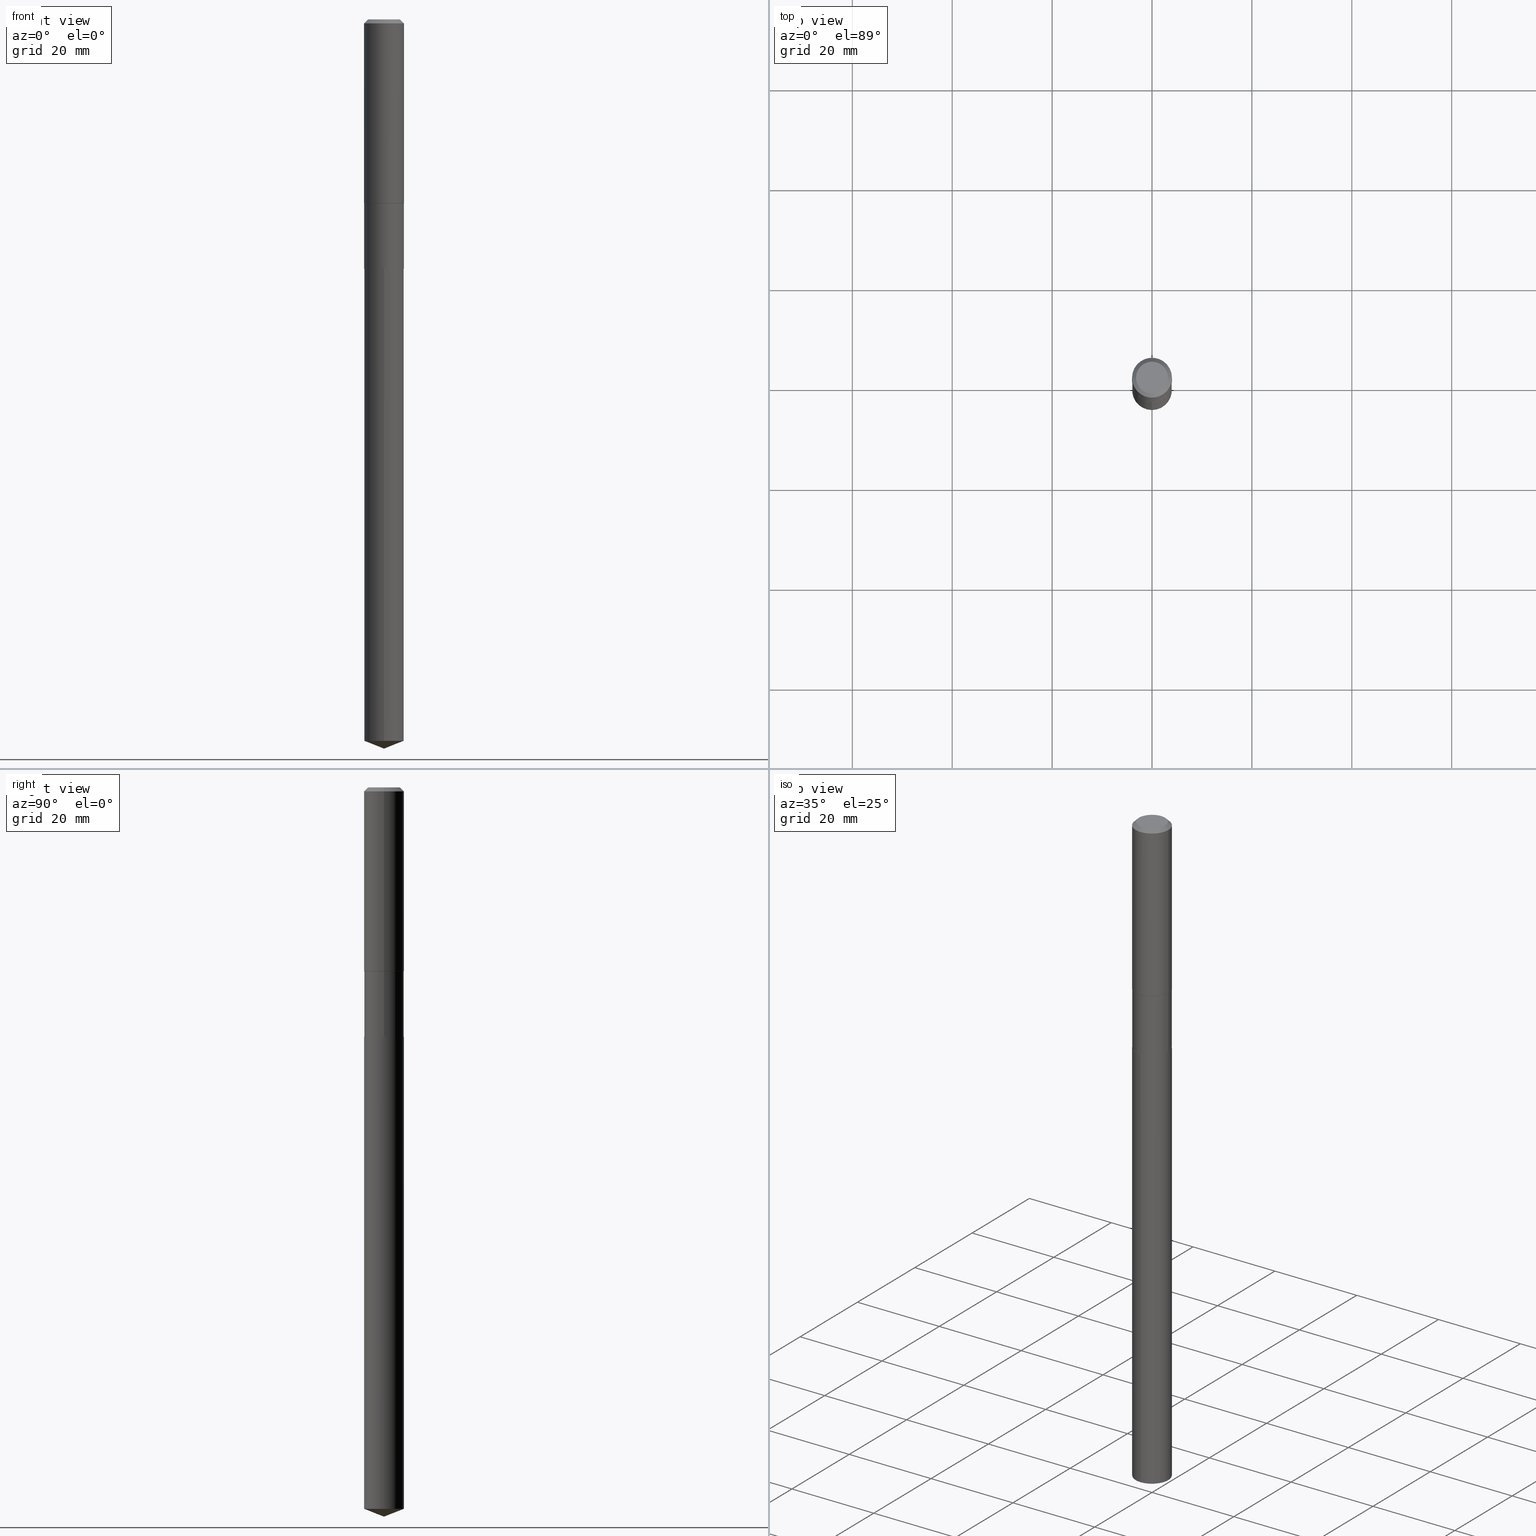
[diagram: canonical four-view strip — front | top / right | iso, engineering-drawing reading convention]
A machine part, canonical four-view strip (front | top / right | iso — engineering-drawing reading convention). The complete STEP part file that produces these views, byte-faithful:
ISO-10303-21;
HEADER;
FILE_DESCRIPTION (( 'STEP AP203' ),
    '1' );
FILE_NAME ('56523.STEP',
    '2024-04-24T18:18:30',
    ( '' ),
    ( '' ),
    'SwSTEP 2.0',
    'SolidWorks 2023',
    '' );
FILE_SCHEMA (( 'CONFIG_CONTROL_DESIGN' ));
ENDSEC;

DATA;
#1 = ORIENTED_EDGE ( 'NONE', *, *, #354, .T. ) ;
#2 = AXIS2_PLACEMENT_3D ( 'NONE', #156, #454, #377 ) ;
#3 = ORIENTED_EDGE ( 'NONE', *, *, #87, .T. ) ;
#4 = ORIENTED_EDGE ( 'NONE', *, *, #391, .T. ) ;
#5 = CC_DESIGN_PERSON_AND_ORGANIZATION_ASSIGNMENT ( #436, #98, ( #199 ) ) ;
#6 = AXIS2_PLACEMENT_3D ( 'NONE', #36, #148, #329 ) ;
#7 = ORIENTED_EDGE ( 'NONE', *, *, #272, .T. ) ;
#8 = ORIENTED_EDGE ( 'NONE', *, *, #225, .F. ) ;
#9 = ADVANCED_FACE ( 'NONE', ( #466 ), #295, .T. ) ;
#10 = APPLICATION_PROTOCOL_DEFINITION ( 'international standard', 'config_control_design', 1994, #193 ) ;
#11 = FACE_OUTER_BOUND ( 'NONE', #271, .T. ) ;
#12 = ADVANCED_FACE ( 'NONE', ( #431 ), #247, .F. ) ;
#13 = ORIENTED_EDGE ( 'NONE', *, *, #80, .F. ) ;
#14 = APPROVAL_DATE_TIME ( #66, #452 ) ;
#15 = ADVANCED_FACE ( 'NONE', ( #65 ), #56, .T. ) ;
#16 = DIRECTION ( 'NONE',  ( -6.982962677686265133E-15, -1.000000000000000000, 0.000000000000000000 ) ) ;
#17 = AXIS2_PLACEMENT_3D ( 'NONE', #136, #142, #112 ) ;
#18 = VERTEX_POINT ( 'NONE', #59 ) ;
#19 = DIRECTION ( 'NONE',  ( 1.000000000000000000, -6.982962677686265922E-15, 0.000000000000000000 ) ) ;
#20 = DIRECTION ( 'NONE',  ( -2.445468806185136597E-29, 3.491481338843145583E-15, 1.000000000000000000 ) ) ;
#21 = ADVANCED_FACE ( 'NONE', ( #409 ), #81, .T. ) ;
#22 = EDGE_LOOP ( 'NONE', ( #350, #137, #249 ) ) ;
#23 = APPROVAL_DATE_TIME ( #353, #477 ) ;
#24 = EDGE_CURVE ( 'NONE', #438, #200, #356, .T. ) ;
#25 = CARTESIAN_POINT ( 'NONE',  ( 4.804857110392556897E-29, -6.860062534559013370E-15, -1.964800000000000324 ) ) ;
#26 = EDGE_CURVE ( 'NONE', #438, #205, #290, .T. ) ;
#27 = CARTESIAN_POINT ( 'NONE',  ( 0.1260000000000000009, -1.027466422270894443E-15, 3.860086710919128072E-18 ) ) ;
#28 = FACE_OUTER_BOUND ( 'NONE', #286, .T. ) ;
#29 = VERTEX_POINT ( 'NONE', #71 ) ;
#30 = DIRECTION ( 'NONE',  ( -2.445564811276899621E-29, 3.491343854087470303E-15, 1.000000000000000000 ) ) ;
#31 = AXIS2_PLACEMENT_3D ( 'NONE', #293, #327, #33 ) ;
#32 = DIRECTION ( 'NONE',  ( 1.000000000000000000, -6.982962677686265922E-15, 0.000000000000000000 ) ) ;
#33 = DIRECTION ( 'NONE',  ( -6.982962677686265133E-15, -1.000000000000000000, 3.496765431890256920E-15 ) ) ;
#34 = AXIS2_PLACEMENT_3D ( 'NONE', #84, #297, #269 ) ;
#35 = FACE_OUTER_BOUND ( 'NONE', #460, .T. ) ;
#36 = CARTESIAN_POINT ( 'NONE',  ( 0.000000000000000000, 0.000000000000000000, 0.000000000000000000 ) ) ;
#37 = LINE ( 'NONE', #336, #123 ) ;
#38 = FACE_OUTER_BOUND ( 'NONE', #234, .T. ) ;
#39 = AXIS2_PLACEMENT_3D ( 'NONE', #25, #440, #19 ) ;
#40 = CARTESIAN_POINT ( 'NONE',  ( -0.1562499999999999445, -4.848688176378441188E-15, -1.449100000000000055 ) ) ;
#41 = DIRECTION ( 'NONE',  ( -6.982962677686265133E-15, -1.000000000000000000, 3.496765431890256920E-15 ) ) ;
#42 = VERTEX_POINT ( 'NONE', #406 ) ;
#43 = ORIENTED_EDGE ( 'NONE', *, *, #26, .F. ) ;
#44 = EDGE_CURVE ( 'NONE', #101, #29, #105, .T. ) ;
#45 = AXIS2_PLACEMENT_3D ( 'NONE', #252, #257, #182 ) ;
#46 = CC_DESIGN_PERSON_AND_ORGANIZATION_ASSIGNMENT ( #284, #321, ( #138 ) ) ;
#47 = ORIENTED_EDGE ( 'NONE', *, *, #173, .F. ) ;
#48 = ORIENTED_EDGE ( 'NONE', *, *, #187, .T. ) ;
#49 = DIRECTION ( 'NONE',  ( -2.445468806185136597E-29, 3.491481338843145583E-15, 1.000000000000000000 ) ) ;
#50 = DIRECTION ( 'NONE',  ( -2.445468806185136597E-29, 3.491481338843145583E-15, 1.000000000000000000 ) ) ;
#51 =( GEOMETRIC_REPRESENTATION_CONTEXT ( 3 ) GLOBAL_UNCERTAINTY_ASSIGNED_CONTEXT ( ( #163 ) ) GLOBAL_UNIT_ASSIGNED_CONTEXT ( ( #292, #394, #67 ) ) REPRESENTATION_CONTEXT ( 'NONE', 'WORKASPACE' ) );
#52 = CARTESIAN_POINT ( 'NONE',  ( 1.110223024625204464E-15, 0.1562499999999931444, -1.964800000000000768 ) ) ;
#53 = CARTESIAN_POINT ( 'NONE',  ( -4.719860820353100843E-47, 6.738710358733633822E-33, 1.930043355456229866E-18 ) ) ;
#54 = EDGE_CURVE ( 'NONE', #174, #125, #258, .T. ) ;
#55 = ADVANCED_BREP_SHAPE_REPRESENTATION ( '56523', ( #419, #245, #388 ), #51 ) ;
#56 = CYLINDRICAL_SURFACE ( 'NONE', #288, 0.1562500000000000000 ) ;
#57 = PERSON_AND_ORGANIZATION ( #155, #188 ) ;
#58 = CARTESIAN_POINT ( 'NONE',  ( 4.804857110392556897E-29, -6.860062534559013370E-15, -1.964800000000000324 ) ) ;
#59 = CARTESIAN_POINT ( 'NONE',  ( 1.405710653521961845E-28, -2.006824447329478058E-14, -5.748000000000000220 ) ) ;
#60 = COORDINATED_UNIVERSAL_TIME_OFFSET ( 5, 0, .BEHIND. ) ;
#61 = FACE_OUTER_BOUND ( 'NONE', #399, .T. ) ;
#62 = CIRCLE ( 'NONE', #135, 0.1575000000000000011 ) ;
#63 = CC_DESIGN_PERSON_AND_ORGANIZATION_ASSIGNMENT ( #361, #315, ( #64 ) ) ;
#64 = PRODUCT_DEFINITION_FORMATION_WITH_SPECIFIED_SOURCE ( 'ANY', '', #129, .NOT_KNOWN. ) ;
#65 = FACE_OUTER_BOUND ( 'NONE', #218, .T. ) ;
#66 = DATE_AND_TIME ( #134, #303 ) ;
#67 =( NAMED_UNIT ( * ) SI_UNIT ( $, .STERADIAN. ) SOLID_ANGLE_UNIT ( ) );
#68 = ORIENTED_EDGE ( 'NONE', *, *, #354, .F. ) ;
#69 = CARTESIAN_POINT ( 'NONE',  ( 0.000000000000000000, 0.000000000000000000, 0.000000000000000000 ) ) ;
#70 = PLANE ( 'NONE',  #416 ) ;
#71 = CARTESIAN_POINT ( 'NONE',  ( 1.110223024625295774E-15, 0.1562499999999931444, -1.964800000000000768 ) ) ;
#72 = FACE_OUTER_BOUND ( 'NONE', #92, .T. ) ;
#73 = AXIS2_PLACEMENT_3D ( 'NONE', #277, #282, #215 ) ;
#74 = LINE ( 'NONE', #481, #268 ) ;
#75 = CONICAL_SURFACE ( 'NONE', #400, 0.1562499999999999445, 0.7853981633974755905 ) ;
#76 = CC_DESIGN_APPROVAL ( #477, ( #138 ) ) ;
#77 = CARTESIAN_POINT ( 'NONE',  ( -0.1575000000000001676, -3.936036447621889468E-15, -1.447849999999999859 ) ) ;
#78 = DIRECTION ( 'NONE',  ( -2.445468806185136597E-29, 3.491481338843145583E-15, 1.000000000000000000 ) ) ;
#79 = CARTESIAN_POINT ( 'NONE',  ( 0.1557499999999999996, -7.947658971608648747E-15, -1.964800000000000324 ) ) ;
#80 = EDGE_CURVE ( 'NONE', #42, #29, #366, .T. ) ;
#81 = CONICAL_SURFACE ( 'NONE', #344, 0.1562499999999999445, 0.7853981633974755905 ) ;
#82 = AXIS2_PLACEMENT_3D ( 'NONE', #194, #226, #489 ) ;
#83 = CIRCLE ( 'NONE', #340, 0.1562500000000000000 ) ;
#84 = CARTESIAN_POINT ( 'NONE',  ( 3.540672011035149467E-29, -5.055141256444048649E-15, -1.447849999999999859 ) ) ;
#85 = CARTESIAN_POINT ( 'NONE',  ( -0.1557499999999999996, -5.750742996438546527E-15, -1.964800000000000324 ) ) ;
#86 = EDGE_CURVE ( 'NONE', #42, #276, #367, .T. ) ;
#87 = EDGE_CURVE ( 'NONE', #275, #95, #165, .T. ) ;
#88 = ORIENTED_EDGE ( 'NONE', *, *, #132, .T. ) ;
#89 = CIRCLE ( 'NONE', #357, 0.1575000000000001676 ) ;
#90 = FACE_OUTER_BOUND ( 'NONE', #317, .T. ) ;
#91 = EDGE_LOOP ( 'NONE', ( #381, #126 ) ) ;
#92 = EDGE_LOOP ( 'NONE', ( #469, #310, #171, #68 ) ) ;
#93 = VECTOR ( 'NONE', #152, 39.37007874015748143 ) ;
#94 = LOCAL_TIME ( 14, 18, 30.00000000000000000, #60 ) ;
#95 = VERTEX_POINT ( 'NONE', #115 ) ;
#96 = CARTESIAN_POINT ( 'NONE',  ( -8.222516127971458771E-28, 1.173859678410458772E-13, 33.62207874015748388 ) ) ;
#97 = ORIENTED_EDGE ( 'NONE', *, *, #86, .T. ) ;
#98 = PERSON_AND_ORGANIZATION_ROLE ( 'classification_officer' ) ;
#99 = ADVANCED_FACE ( 'NONE', ( #35 ), #164, .T. ) ;
#100 = DIRECTION ( 'NONE',  ( 1.000000000000000000, -6.982962677686265922E-15, 0.000000000000000000 ) ) ;
#101 = VERTEX_POINT ( 'NONE', #296 ) ;
#102 = APPROVAL_STATUS ( 'not_yet_approved' ) ;
#103 = DIRECTION ( 'NONE',  ( -2.445564811276899621E-29, 3.491343854087470303E-15, 1.000000000000000000 ) ) ;
#104 = CARTESIAN_POINT ( 'NONE',  ( 7.703226739483226971E-31, -1.099816621735597538E-16, -0.03150000000000019451 ) ) ;
#105 = CIRCLE ( 'NONE', #31, 0.1562500000000000000 ) ;
#106 = CIRCLE ( 'NONE', #375, 0.1562500000000000000 ) ;
#107 = CARTESIAN_POINT ( 'NONE',  ( 4.804857110392556897E-29, -6.860062534559013370E-15, -1.964800000000000324 ) ) ;
#108 = ORIENTED_EDGE ( 'NONE', *, *, #120, .F. ) ;
#109 = PERSON_AND_ORGANIZATION ( #155, #188 ) ;
#110 = CARTESIAN_POINT ( 'NONE',  ( 0.1575000000000000011, -1.190510096822576026E-15, -0.03150000000000019451 ) ) ;
#111 = CARTESIAN_POINT ( 'NONE',  ( -1.091087918388431053E-15, -0.1562500000000068834, -1.964799999999999658 ) ) ;
#112 = DIRECTION ( 'NONE',  ( 1.000000000000000000, -6.982962677686265133E-15, 0.000000000000000000 ) ) ;
#113 = CARTESIAN_POINT ( 'NONE',  ( 3.543728847042881471E-29, -5.059505608117602803E-15, -1.449100000000000055 ) ) ;
#114 = ADVANCED_FACE ( 'NONE', ( #38 ), #241, .T. ) ;
#115 = CARTESIAN_POINT ( 'NONE',  ( -0.1562500000000000000, -4.848688176378441188E-15, -1.964300000000000379 ) ) ;
#116 = AXIS2_PLACEMENT_3D ( 'NONE', #261, #362, #224 ) ;
#117 = APPROVAL_PERSON_ORGANIZATION ( #473, #477, #177 ) ;
#118 = CARTESIAN_POINT ( 'NONE',  ( 0.000000000000000000, 0.000000000000000000, 0.000000000000000000 ) ) ;
#119 = EDGE_CURVE ( 'NONE', #29, #101, #464, .T. ) ;
#120 = EDGE_CURVE ( 'NONE', #200, #125, #414, .T. ) ;
#121 = CARTESIAN_POINT ( 'NONE',  ( 7.703226739483226971E-31, -1.099816621735597538E-16, -0.03150000000000019451 ) ) ;
#122 = DIRECTION ( 'NONE',  ( -6.982962677686265133E-15, -1.000000000000000000, 0.000000000000000000 ) ) ;
#123 = VECTOR ( 'NONE', #332, 39.37007874015748854 ) ;
#124 = CARTESIAN_POINT ( 'NONE',  ( 0.1575000000000000011, -1.209798283909146741E-15, -0.03150000000000019451 ) ) ;
#125 = VERTEX_POINT ( 'NONE', #415 ) ;
#126 = ORIENTED_EDGE ( 'NONE', *, *, #119, .T. ) ;
#127 = CIRCLE ( 'NONE', #34, 0.1575000000000001676 ) ;
#128 = CARTESIAN_POINT ( 'NONE',  ( 0.1575000000000000844, -1.099816621735587677E-15, 7.679978421878603638E-30 ) ) ;
#129 = PRODUCT ( '56523', '56523', '', ( #351 ) ) ;
#130 = ORIENTED_EDGE ( 'NONE', *, *, #484, .T. ) ;
#131 = DIRECTION ( 'NONE',  ( 1.000000000000000000, -6.982962677686265133E-15, 0.000000000000000000 ) ) ;
#132 = EDGE_CURVE ( 'NONE', #95, #239, #264, .T. ) ;
#133 = ORIENTED_EDGE ( 'NONE', *, *, #26, .T. ) ;
#134 = CALENDAR_DATE ( 2024, 24, 4 ) ;
#135 = AXIS2_PLACEMENT_3D ( 'NONE', #121, #78, #490 ) ;
#136 = CARTESIAN_POINT ( 'NONE',  ( 3.543728847042881471E-29, -5.059505608117602803E-15, -1.449100000000000055 ) ) ;
#137 = ORIENTED_EDGE ( 'NONE', *, *, #374, .T. ) ;
#138 = PRODUCT_DEFINITION ( 'UNKNOWN', '', #64, #455 ) ;
#139 = PERSON_AND_ORGANIZATION ( #155, #188 ) ;
#140 = ORIENTED_EDGE ( 'NONE', *, *, #278, .T. ) ;
#141 = DIRECTION ( 'NONE',  ( 0.000000000000000000, 0.000000000000000000, 1.000000000000000000 ) ) ;
#142 = DIRECTION ( 'NONE',  ( -2.445468806185136597E-29, 3.491481338843145583E-15, 1.000000000000000000 ) ) ;
#143 = PRODUCT_DEFINITION_SHAPE ( 'NONE', 'NONE',  #138 ) ;
#144 = ORIENTED_EDGE ( 'NONE', *, *, #445, .F. ) ;
#145 = PERSON_AND_ORGANIZATION_ROLE ( 'creator' ) ;
#146 = AXIS2_PLACEMENT_3D ( 'NONE', #157, #335, #41 ) ;
#147 = CC_DESIGN_SECURITY_CLASSIFICATION ( #199, ( #64 ) ) ;
#148 = DIRECTION ( 'NONE',  ( -2.445468806185136597E-29, 3.491481338843145583E-15, 1.000000000000000000 ) ) ;
#149 = DIRECTION ( 'NONE',  ( -2.445468806185136597E-29, 3.491481338843145583E-15, 1.000000000000000000 ) ) ;
#150 = APPROVAL_ROLE ( '' ) ;
#151 = CARTESIAN_POINT ( 'NONE',  ( 4.803634375989465217E-29, -6.858316793889591866E-15, -1.964300000000000379 ) ) ;
#152 = DIRECTION ( 'NONE',  ( -2.445564811276899621E-29, 3.491343854087470303E-15, 1.000000000000000000 ) ) ;
#153 = CARTESIAN_POINT ( 'NONE',  ( 0.1575000000000001676, -6.154957878179636918E-15, -1.447849999999999859 ) ) ;
#154 = DIRECTION ( 'NONE',  ( 1.000000000000000000, -6.982962677686265922E-15, 4.876281427513067258E-29 ) ) ;
#155 = PERSON ( 'UNSPECIFIED', 'UNSPECIFIED', 'UNSPECIFIED', ('UNSPECIFIED'), ('UNSPECIFIED'), ('UNSPECIFIED') ) ;
#156 = CARTESIAN_POINT ( 'NONE',  ( 0.000000000000000000, 0.000000000000000000, 0.000000000000000000 ) ) ;
#157 = CARTESIAN_POINT ( 'NONE',  ( 4.804857110392556897E-29, -6.860062534559013370E-15, -1.964800000000000324 ) ) ;
#158 = CLOSED_SHELL ( 'NONE', ( #243, #9, #334, #15, #342 ) ) ;
#159 = EDGE_CURVE ( 'NONE', #167, #238, #369, .T. ) ;
#160 = AXIS2_PLACEMENT_3D ( 'NONE', #365, #281, #434 ) ;
#161 = CC_DESIGN_DATE_AND_TIME_ASSIGNMENT ( #287, #442, ( #199 ) ) ;
#162 = DIRECTION ( 'NONE',  ( 6.611014441532059489E-15, 0.9304175679820259059, 0.3665012267242935828 ) ) ;
#163 = UNCERTAINTY_MEASURE_WITH_UNIT (LENGTH_MEASURE( 1.000000000000000082E-05 ), #292, 'distance_accuracy_value', 'NONE');
#164 = CYLINDRICAL_SURFACE ( 'NONE', #2, 0.1575000000000000844 ) ;
#165 = LINE ( 'NONE', #190, #410 ) ;
#166 = VECTOR ( 'NONE', #259, 39.37007874015748143 ) ;
#167 = VERTEX_POINT ( 'NONE', #195 ) ;
#168 = DIRECTION ( 'NONE',  ( -2.445564811276899621E-29, 3.491343854087470303E-15, 1.000000000000000000 ) ) ;
#169 = ORIENTED_EDGE ( 'NONE', *, *, #445, .T. ) ;
#170 = DIRECTION ( 'NONE',  ( -2.445468806185136597E-29, 3.491481338843145583E-15, 1.000000000000000000 ) ) ;
#171 = ORIENTED_EDGE ( 'NONE', *, *, #44, .F. ) ;
#172 = ADVANCED_FACE ( 'NONE', ( #373 ), #294, .T. ) ;
#173 = EDGE_CURVE ( 'NONE', #125, #205, #62, .T. ) ;
#174 = VERTEX_POINT ( 'NONE', #77 ) ;
#175 = CARTESIAN_POINT ( 'NONE',  ( -1.091087918388340334E-15, -0.1562500000000198452, -5.686451488185165104 ) ) ;
#176 = DIRECTION ( 'NONE',  ( -1.000000000000000000, 6.982962677686265922E-15, -4.876176775795935793E-29 ) ) ;
#177 = APPROVAL_ROLE ( '' ) ;
#178 = ORIENTED_EDGE ( 'NONE', *, *, #173, .T. ) ;
#179 = EDGE_CURVE ( 'NONE', #238, #461, #37, .T. ) ;
#180 = CIRCLE ( 'NONE', #39, 0.1557499999999999996 ) ;
#181 = EDGE_LOOP ( 'NONE', ( #210, #305, #8, #422 ) ) ;
#182 = DIRECTION ( 'NONE',  ( 1.000000000000000000, -6.982962677686265922E-15, 0.000000000000000000 ) ) ;
#183 = ORIENTED_EDGE ( 'NONE', *, *, #119, .F. ) ;
#184 = CALENDAR_DATE ( 2024, 24, 4 ) ;
#185 = ORIENTED_EDGE ( 'NONE', *, *, #24, .T. ) ;
#186 = FACE_OUTER_BOUND ( 'NONE', #91, .T. ) ;
#187 = EDGE_CURVE ( 'NONE', #167, #95, #387, .T. ) ;
#188 = ORGANIZATION ( 'UNSPECIFIED', 'UNSPECIFIED', '' ) ;
#189 = DIRECTION ( 'NONE',  ( 0.7071067811865452413, -7.319954787623248157E-15, -0.7071067811865497932 ) ) ;
#190 = CARTESIAN_POINT ( 'NONE',  ( -0.1557499999999999996, -5.753392223612657728E-15, -1.964800000000000324 ) ) ;
#191 = DIRECTION ( 'NONE',  ( -0.7071067811865666686, 7.493145998870422002E-15, 0.7071067811865281438 ) ) ;
#192 = EDGE_CURVE ( 'NONE', #239, #174, #456, .T. ) ;
#193 = APPLICATION_CONTEXT ( 'configuration controlled 3d designs of mechanical parts and assemblies' ) ;
#194 = CARTESIAN_POINT ( 'NONE',  ( 4.803634375989465217E-29, -6.858316793889591866E-15, -1.964300000000000379 ) ) ;
#195 = CARTESIAN_POINT ( 'NONE',  ( 0.1562500000000000000, -7.949404712278071040E-15, -1.964300000000000379 ) ) ;
#196 = DIRECTION ( 'NONE',  ( -2.445468806185136597E-29, 3.491481338843145583E-15, 1.000000000000000000 ) ) ;
#197 = EDGE_LOOP ( 'NONE', ( #236, #169, #207, #47 ) ) ;
#198 = EDGE_LOOP ( 'NONE', ( #130, #185 ) ) ;
#199 = SECURITY_CLASSIFICATION ( '', '', #470 ) ;
#200 = VERTEX_POINT ( 'NONE', #301 ) ;
#201 = EDGE_CURVE ( 'NONE', #232, #167, #330, .T. ) ;
#202 = EDGE_LOOP ( 'NONE', ( #320, #273, #363, #384 ) ) ;
#203 = VECTOR ( 'NONE', #191, 39.37007874015748854 ) ;
#204 = LOCAL_TIME ( 14, 18, 30.00000000000000000, #208 ) ;
#205 = VERTEX_POINT ( 'NONE', #124 ) ;
#206 = PLANE ( 'NONE',  #160 ) ;
#207 = ORIENTED_EDGE ( 'NONE', *, *, #260, .T. ) ;
#208 = COORDINATED_UNIVERSAL_TIME_OFFSET ( 5, 0, .BEHIND. ) ;
#209 = EDGE_CURVE ( 'NONE', #18, #42, #488, .T. ) ;
#210 = ORIENTED_EDGE ( 'NONE', *, *, #429, .T. ) ;
#211 = CALENDAR_DATE ( 2024, 24, 4 ) ;
#212 = VECTOR ( 'NONE', #189, 39.37007874015748143 ) ;
#213 = AXIS2_PLACEMENT_3D ( 'NONE', #453, #328, #228 ) ;
#214 = DIMENSIONAL_EXPONENTS ( 1.000000000000000000, 0.000000000000000000, 0.000000000000000000, 0.000000000000000000, 0.000000000000000000, 0.000000000000000000, 0.000000000000000000 ) ;
#215 = DIRECTION ( 'NONE',  ( -6.982962677686265922E-15, -1.000000000000000000, 3.498627837350038143E-15 ) ) ;
#216 = CALENDAR_DATE ( 2024, 24, 4 ) ;
#217 = DIRECTION ( 'NONE',  ( -2.445468806185136597E-29, 3.491481338843145583E-15, 1.000000000000000000 ) ) ;
#218 = EDGE_LOOP ( 'NONE', ( #13, #97, #1, #183 ) ) ;
#219 = PERSON_AND_ORGANIZATION ( #155, #188 ) ;
#220 = DIRECTION ( 'NONE',  ( -2.445468806185136597E-29, 3.491481338843145583E-15, 1.000000000000000000 ) ) ;
#221 = CARTESIAN_POINT ( 'NONE',  ( -9.439721640706201686E-47, 1.347742071746726764E-32, 3.860086710912459732E-18 ) ) ;
#222 = CIRCLE ( 'NONE', #116, 0.1575000000000000011 ) ;
#223 = CARTESIAN_POINT ( 'NONE',  ( 4.804857110392556897E-29, -6.860062534559013370E-15, -1.964800000000000324 ) ) ;
#224 = DIRECTION ( 'NONE',  ( 1.000000000000000000, -6.982962677686265922E-15, 0.000000000000000000 ) ) ;
#225 = EDGE_CURVE ( 'NONE', #461, #174, #127, .T. ) ;
#226 = DIRECTION ( 'NONE',  ( -2.445468806185136597E-29, 3.491481338843145583E-15, 1.000000000000000000 ) ) ;
#227 = CARTESIAN_POINT ( 'NONE',  ( 0.1562499999999999722, -1.091087918388478976E-15, 7.619026212181148976E-30 ) ) ;
#228 = DIRECTION ( 'NONE',  ( -1.000000000000000000, 6.982962677686265922E-15, 0.000000000000000000 ) ) ;
#229 = AXIS2_PLACEMENT_3D ( 'NONE', #96, #392, #405 ) ;
#230 = DIRECTION ( 'NONE',  ( -0.7071067811865452413, 2.468850131082233000E-15, -0.7071067811865497932 ) ) ;
#231 = ORIENTED_EDGE ( 'NONE', *, *, #391, .F. ) ;
#232 = VERTEX_POINT ( 'NONE', #79 ) ;
#233 = CYLINDRICAL_SURFACE ( 'NONE', #411, 0.1575000000000000844 ) ;
#234 = EDGE_LOOP ( 'NONE', ( #43, #428, #441, #178 ) ) ;
#235 = CC_DESIGN_PERSON_AND_ORGANIZATION_ASSIGNMENT ( #219, #145, ( #64 ) ) ;
#236 = ORIENTED_EDGE ( 'NONE', *, *, #54, .F. ) ;
#237 = DIRECTION ( 'NONE',  ( -6.982962677686265133E-15, -1.000000000000000000, 3.496765431890256920E-15 ) ) ;
#238 = VERTEX_POINT ( 'NONE', #376 ) ;
#239 = VERTEX_POINT ( 'NONE', #40 ) ;
#240 = AXIS2_PLACEMENT_3D ( 'NONE', #221, #149, #154 ) ;
#241 = CONICAL_SURFACE ( 'NONE', #213, 0.1575000000000000011, 0.7853981633974450594 ) ;
#242 = ORIENTED_EDGE ( 'NONE', *, *, #225, .T. ) ;
#243 = ADVANCED_FACE ( 'NONE', ( #72 ), #485, .T. ) ;
#244 = DIRECTION ( 'NONE',  ( 1.000000000000000000, 0.000000000000000000, 0.000000000000000000 ) ) ;
#245 = MANIFOLD_SOLID_BREP ( 'Body-Move/Copy2[2]', #423 ) ;
#246 = CARTESIAN_POINT ( 'NONE',  ( 4.804857110392556897E-29, -6.860062534559013370E-15, -1.964800000000000324 ) ) ;
#247 = PLANE ( 'NONE',  #486 ) ;
#248 = COORDINATED_UNIVERSAL_TIME_OFFSET ( 5, 0, .BEHIND. ) ;
#249 = ORIENTED_EDGE ( 'NONE', *, *, #86, .F. ) ;
#250 = DATE_TIME_ROLE ( 'creation_date' ) ;
#251 = VECTOR ( 'NONE', #413, 39.37007874015748143 ) ;
#252 = CARTESIAN_POINT ( 'NONE',  ( 4.804857110392556897E-29, -6.860062534559013370E-15, -1.964800000000000324 ) ) ;
#253 = DIRECTION ( 'NONE',  ( -2.445468806185136597E-29, 3.491481338843145583E-15, 1.000000000000000000 ) ) ;
#254 = ADVANCED_FACE ( 'NONE', ( #420 ), #233, .T. ) ;
#255 = ORIENTED_EDGE ( 'NONE', *, *, #429, .F. ) ;
#256 = APPROVAL_ROLE ( '' ) ;
#257 = DIRECTION ( 'NONE',  ( -2.445468806185136597E-29, 3.491481338843145583E-15, 1.000000000000000000 ) ) ;
#258 = LINE ( 'NONE', #448, #300 ) ;
#259 = DIRECTION ( 'NONE',  ( -2.445564811276899621E-29, 3.491343854087470303E-15, 1.000000000000000000 ) ) ;
#260 = EDGE_CURVE ( 'NONE', #461, #205, #306, .T. ) ;
#261 = CARTESIAN_POINT ( 'NONE',  ( 7.703226739483226971E-31, -1.099816621735597538E-16, -0.03150000000000019451 ) ) ;
#262 = DIRECTION ( 'NONE',  ( -2.445468806185136597E-29, 3.491481338843145583E-15, 1.000000000000000000 ) ) ;
#263 = CONICAL_SURFACE ( 'NONE', #302, 0.1575000000000000011, 0.7853981633974450594 ) ;
#264 = LINE ( 'NONE', #458, #487 ) ;
#265 = DIRECTION ( 'NONE',  ( 0.7071067811866199593, -2.468850131083015945E-15, 0.7071067811864750752 ) ) ;
#266 = CARTESIAN_POINT ( 'NONE',  ( -0.1575000000000000011, 9.898349595620272334E-16, -0.03150000000000019451 ) ) ;
#267 = CARTESIAN_POINT ( 'NONE',  ( 0.1557499999999999996, -7.947658971608648747E-15, -1.964800000000000324 ) ) ;
#268 = VECTOR ( 'NONE', #285, 39.37007874015748854 ) ;
#269 = DIRECTION ( 'NONE',  ( 1.000000000000000000, -6.982962677686267499E-15, 0.000000000000000000 ) ) ;
#270 = ADVANCED_FACE ( 'NONE', ( #90 ), #75, .T. ) ;
#271 = EDGE_LOOP ( 'NONE', ( #425, #140, #283, #379 ) ) ;
#272 = EDGE_CURVE ( 'NONE', #239, #238, #457, .T. ) ;
#273 = ORIENTED_EDGE ( 'NONE', *, *, #349, .T. ) ;
#274 = LOCAL_TIME ( 14, 18, 30.00000000000000000, #311 ) ;
#275 = VERTEX_POINT ( 'NONE', #85 ) ;
#276 = VERTEX_POINT ( 'NONE', #175 ) ;
#277 = CARTESIAN_POINT ( 'NONE',  ( -8.222516127971458771E-28, 1.173859678410458772E-13, 33.62207874015748388 ) ) ;
#278 = EDGE_CURVE ( 'NONE', #275, #232, #180, .T. ) ;
#279 = VECTOR ( 'NONE', #162, 39.37007874015748143 ) ;
#280 = FACE_OUTER_BOUND ( 'NONE', #478, .T. ) ;
#281 = DIRECTION ( 'NONE',  ( -2.438088387897960049E-29, 3.491481338843145188E-15, 1.000000000000000000 ) ) ;
#282 = DIRECTION ( 'NONE',  ( -2.445564811276899621E-29, 3.491343854087470303E-15, 1.000000000000000000 ) ) ;
#283 = ORIENTED_EDGE ( 'NONE', *, *, #201, .T. ) ;
#284 = PERSON_AND_ORGANIZATION ( #155, #188 ) ;
#285 = DIRECTION ( 'NONE',  ( -6.497071151882111159E-15, -0.9304175679820234635, 0.3665012267243001332 ) ) ;
#286 = EDGE_LOOP ( 'NONE', ( #48, #88, #255, #435 ) ) ;
#287 = DATE_AND_TIME ( #216, #325 ) ;
#288 = AXIS2_PLACEMENT_3D ( 'NONE', #352, #395, #360 ) ;
#289 = APPROVAL_PERSON_ORGANIZATION ( #109, #298, #256 ) ;
#290 = LINE ( 'NONE', #110, #212 ) ;
#291 = DIRECTION ( 'NONE',  ( 1.000000000000000000, -6.982962677686269077E-15, 0.000000000000000000 ) ) ;
#292 =( CONVERSION_BASED_UNIT ( 'INCH', #474 ) LENGTH_UNIT ( ) NAMED_UNIT ( #214 ) );
#293 = CARTESIAN_POINT ( 'NONE',  ( 4.804857110392556897E-29, -6.860062534559013370E-15, -1.964800000000000324 ) ) ;
#294 = CYLINDRICAL_SURFACE ( 'NONE', #339, 0.1562499999999999722 ) ;
#295 = CONICAL_SURFACE ( 'NONE', #73, 99.94676754583900902, 1.195550537616116182 ) ;
#296 = CARTESIAN_POINT ( 'NONE',  ( -1.091087918388431053E-15, -0.1562500000000068834, -1.964799999999999658 ) ) ;
#297 = DIRECTION ( 'NONE',  ( -2.445468806185136597E-29, 3.491481338843145583E-15, 1.000000000000000000 ) ) ;
#298 = APPROVAL ( #396, 'UNSPECIFIED' ) ;
#299 = DIRECTION ( 'NONE',  ( -2.445468806185136877E-29, 3.491481338843145188E-15, 1.000000000000000000 ) ) ;
#300 = VECTOR ( 'NONE', #482, 39.37007874015748143 ) ;
#301 = CARTESIAN_POINT ( 'NONE',  ( -0.1260000000000000009, 9.348441284752484904E-16, 3.860086710906114178E-18 ) ) ;
#302 = AXIS2_PLACEMENT_3D ( 'NONE', #104, #471, #433 ) ;
#303 = LOCAL_TIME ( 14, 18, 30.00000000000000000, #404 ) ;
#304 = ADVANCED_FACE ( 'NONE', ( #280 ), #263, .T. ) ;
#305 = ORIENTED_EDGE ( 'NONE', *, *, #192, .T. ) ;
#306 = LINE ( 'NONE', #128, #345 ) ;
#307 = CONICAL_SURFACE ( 'NONE', #229, 99.94676754583900902, 1.195550537616116182 ) ;
#308 = CC_DESIGN_APPROVAL ( #452, ( #64 ) ) ;
#309 = DIRECTION ( 'NONE',  ( 1.000000000000000000, -6.982962677686267499E-15, 4.876176775795936353E-29 ) ) ;
#310 = ORIENTED_EDGE ( 'NONE', *, *, #80, .T. ) ;
#311 = COORDINATED_UNIVERSAL_TIME_OFFSET ( 5, 0, .BEHIND. ) ;
#312 =( LENGTH_UNIT ( ) NAMED_UNIT ( * ) SI_UNIT ( $, .METRE. ) );
#313 = ORIENTED_EDGE ( 'NONE', *, *, #192, .F. ) ;
#314 = AXIS2_PLACEMENT_3D ( 'NONE', #386, #50, #348 ) ;
#315 = PERSON_AND_ORGANIZATION_ROLE ( 'design_supplier' ) ;
#316 = FACE_OUTER_BOUND ( 'NONE', #378, .T. ) ;
#317 = EDGE_LOOP ( 'NONE', ( #313, #7, #403, #144 ) ) ;
#318 = ADVANCED_FACE ( 'NONE', ( #11 ), #368, .T. ) ;
#319 = DIRECTION ( 'NONE',  ( 1.000000000000000000, -6.982962677686265922E-15, 4.876281427513067258E-29 ) ) ;
#320 = ORIENTED_EDGE ( 'NONE', *, *, #132, .F. ) ;
#321 = PERSON_AND_ORGANIZATION_ROLE ( 'creator' ) ;
#322 = CARTESIAN_POINT ( 'NONE',  ( -9.439721640706201686E-47, 1.347742071746726764E-32, 3.860086710912459732E-18 ) ) ;
#323 = ORIENTED_EDGE ( 'NONE', *, *, #54, .T. ) ;
#324 = VECTOR ( 'NONE', #230, 39.37007874015748143 ) ;
#325 = LOCAL_TIME ( 14, 18, 30.00000000000000000, #248 ) ;
#326 = DIRECTION ( 'NONE',  ( 6.982962677686265922E-15, 1.000000000000000000, -3.491343854087470303E-15 ) ) ;
#327 = DIRECTION ( 'NONE',  ( -2.445564811276899621E-29, 3.491343854087470303E-15, 1.000000000000000000 ) ) ;
#328 = DIRECTION ( 'NONE',  ( 2.445468806185136597E-29, -3.491481338843145583E-15, -1.000000000000000000 ) ) ;
#329 = DIRECTION ( 'NONE',  ( 1.000000000000000000, -6.982962677686266711E-15, 4.876176775795936353E-29 ) ) ;
#330 = LINE ( 'NONE', #267, #331 ) ;
#331 = VECTOR ( 'NONE', #265, 39.37007874015748143 ) ;
#332 = DIRECTION ( 'NONE',  ( 0.7071067811865666686, -2.468850131082458220E-15, 0.7071067811865281438 ) ) ;
#333 = CC_DESIGN_PERSON_AND_ORGANIZATION_ASSIGNMENT ( #57, #476, ( #129 ) ) ;
#334 = ADVANCED_FACE ( 'NONE', ( #402 ), #307, .T. ) ;
#335 = DIRECTION ( 'NONE',  ( -2.445564811276899621E-29, 3.491343854087470303E-15, 1.000000000000000000 ) ) ;
#336 = CARTESIAN_POINT ( 'NONE',  ( 0.1562499999999999445, -6.150593526506081976E-15, -1.449100000000000055 ) ) ;
#337 = ORIENTED_EDGE ( 'NONE', *, *, #260, .F. ) ;
#338 = AXIS2_PLACEMENT_3D ( 'NONE', #359, #103, #122 ) ;
#339 = AXIS2_PLACEMENT_3D ( 'NONE', #118, #196, #483 ) ;
#340 = AXIS2_PLACEMENT_3D ( 'NONE', #398, #30, #16 ) ;
#341 = ORIENTED_EDGE ( 'NONE', *, *, #374, .F. ) ;
#342 = ADVANCED_FACE ( 'NONE', ( #186 ), #70, .F. ) ;
#343 = EDGE_LOOP ( 'NONE', ( #341, #421, #472 ) ) ;
#344 = AXIS2_PLACEMENT_3D ( 'NONE', #113, #262, #446 ) ;
#345 = VECTOR ( 'NONE', #426, 39.37007874015748143 ) ;
#346 = AXIS2_PLACEMENT_3D ( 'NONE', #223, #168, #237 ) ;
#347 = AXIS2_PLACEMENT_3D ( 'NONE', #322, #253, #319 ) ;
#348 = DIRECTION ( 'NONE',  ( 1.000000000000000000, -6.982962677686265133E-15, 0.000000000000000000 ) ) ;
#349 = EDGE_CURVE ( 'NONE', #95, #167, #106, .T. ) ;
#350 = ORIENTED_EDGE ( 'NONE', *, *, #209, .F. ) ;
#351 = MECHANICAL_CONTEXT ( 'NONE', #371, 'mechanical' ) ;
#352 = CARTESIAN_POINT ( 'NONE',  ( 4.804857110392556897E-29, -6.860062534559013370E-15, -1.964800000000000324 ) ) ;
#353 = DATE_AND_TIME ( #184, #204 ) ;
#354 = EDGE_CURVE ( 'NONE', #276, #101, #447, .T. ) ;
#355 = ORIENTED_EDGE ( 'NONE', *, *, #393, .T. ) ;
#356 = CIRCLE ( 'NONE', #240, 0.1260000000000000009 ) ;
#357 = AXIS2_PLACEMENT_3D ( 'NONE', #437, #220, #444 ) ;
#358 = DATE_AND_TIME ( #211, #94 ) ;
#359 = CARTESIAN_POINT ( 'NONE',  ( 1.390639702973450358E-28, -1.985362758488977835E-14, -5.686451488185165104 ) ) ;
#360 = DIRECTION ( 'NONE',  ( -6.982962677686265133E-15, -1.000000000000000000, 3.496765431890256920E-15 ) ) ;
#361 = PERSON_AND_ORGANIZATION ( #155, #188 ) ;
#362 = DIRECTION ( 'NONE',  ( -2.445468806185136597E-29, 3.491481338843145583E-15, 1.000000000000000000 ) ) ;
#363 = ORIENTED_EDGE ( 'NONE', *, *, #159, .T. ) ;
#364 = APPROVAL_DATE_TIME ( #358, #298 ) ;
#365 = CARTESIAN_POINT ( 'NONE',  ( 4.804857110392556897E-29, -6.860062534559013370E-15, -1.964800000000000324 ) ) ;
#366 = LINE ( 'NONE', #52, #93 ) ;
#367 = CIRCLE ( 'NONE', #338, 0.1562500000000000000 ) ;
#368 = CONICAL_SURFACE ( 'NONE', #45, 0.1557499999999999996, 0.7853981633975507526 ) ;
#369 = LINE ( 'NONE', #227, #251 ) ;
#370 = CYLINDRICAL_SURFACE ( 'NONE', #6, 0.1562499999999999722 ) ;
#371 = APPLICATION_CONTEXT ( 'configuration controlled 3d designs of mechanical parts and assemblies' ) ;
#372 = CARTESIAN_POINT ( 'NONE',  ( -0.1562499999999999445, -3.949282583492447051E-15, -1.449100000000000055 ) ) ;
#373 = FACE_OUTER_BOUND ( 'NONE', #202, .T. ) ;
#374 = EDGE_CURVE ( 'NONE', #18, #276, #74, .T. ) ;
#375 = AXIS2_PLACEMENT_3D ( 'NONE', #151, #408, #291 ) ;
#376 = CARTESIAN_POINT ( 'NONE',  ( 0.1562499999999999445, -6.150593526506081976E-15, -1.449100000000000055 ) ) ;
#377 = DIRECTION ( 'NONE',  ( 1.000000000000000000, -6.982962677686267499E-15, 4.876176775795936353E-29 ) ) ;
#378 = EDGE_LOOP ( 'NONE', ( #231, #465 ) ) ;
#379 = ORIENTED_EDGE ( 'NONE', *, *, #349, .F. ) ;
#380 = CARTESIAN_POINT ( 'NONE',  ( 0.000000000000000000, 0.000000000000000000, 0.000000000000000000 ) ) ;
#381 = ORIENTED_EDGE ( 'NONE', *, *, #44, .T. ) ;
#382 = ORIENTED_EDGE ( 'NONE', *, *, #393, .F. ) ;
#383 = CARTESIAN_POINT ( 'NONE',  ( 3.543728847042881471E-29, -5.059505608117602803E-15, -1.449100000000000055 ) ) ;
#384 = ORIENTED_EDGE ( 'NONE', *, *, #272, .F. ) ;
#385 = CC_DESIGN_DATE_AND_TIME_ASSIGNMENT ( #439, #250, ( #138 ) ) ;
#386 = CARTESIAN_POINT ( 'NONE',  ( 3.543728847042881471E-29, -5.059505608117602803E-15, -1.449100000000000055 ) ) ;
#387 = CIRCLE ( 'NONE', #82, 0.1562500000000000000 ) ;
#388 = AXIS2_PLACEMENT_3D ( 'NONE', #69, #141, #244 ) ;
#389 = ORIENTED_EDGE ( 'NONE', *, *, #187, .F. ) ;
#390 = DIRECTION ( 'NONE',  ( 2.438088387897960049E-29, -3.491481338843145188E-15, -1.000000000000000000 ) ) ;
#391 = EDGE_CURVE ( 'NONE', #232, #275, #430, .T. ) ;
#392 = DIRECTION ( 'NONE',  ( -2.445564811276899621E-29, 3.491343854087470303E-15, 1.000000000000000000 ) ) ;
#393 = EDGE_CURVE ( 'NONE', #205, #125, #222, .T. ) ;
#394 =( NAMED_UNIT ( * ) PLANE_ANGLE_UNIT ( ) SI_UNIT ( $, .RADIAN. ) );
#395 = DIRECTION ( 'NONE',  ( -2.445564811276899621E-29, 3.491343854087470303E-15, 1.000000000000000000 ) ) ;
#396 = APPROVAL_STATUS ( 'not_yet_approved' ) ;
#397 = DIRECTION ( 'NONE',  ( 2.445564811276899341E-29, -3.491343854087470303E-15, -1.000000000000000000 ) ) ;
#398 = CARTESIAN_POINT ( 'NONE',  ( 1.390639702973450358E-28, -1.985362758488977835E-14, -5.686451488185165104 ) ) ;
#399 = EDGE_LOOP ( 'NONE', ( #4, #3, #389, #463 ) ) ;
#400 = AXIS2_PLACEMENT_3D ( 'NONE', #383, #49, #131 ) ;
#401 = APPROVAL_STATUS ( 'not_yet_approved' ) ;
#402 = FACE_OUTER_BOUND ( 'NONE', #22, .T. ) ;
#403 = ORIENTED_EDGE ( 'NONE', *, *, #179, .T. ) ;
#404 = COORDINATED_UNIVERSAL_TIME_OFFSET ( 5, 0, .BEHIND. ) ;
#405 = DIRECTION ( 'NONE',  ( -6.982962677686265922E-15, -1.000000000000000000, 3.498627837350038143E-15 ) ) ;
#406 = CARTESIAN_POINT ( 'NONE',  ( 1.110223024625295577E-15, 0.1562499999999802103, -5.686451488185165104 ) ) ;
#407 = PRODUCT_RELATED_PRODUCT_CATEGORY ( 'detail', '', ( #129 ) ) ;
#408 = DIRECTION ( 'NONE',  ( -2.445468806185136597E-29, 3.491481338843145583E-15, 1.000000000000000000 ) ) ;
#409 = FACE_OUTER_BOUND ( 'NONE', #181, .T. ) ;
#410 = VECTOR ( 'NONE', #449, 39.37007874015748143 ) ;
#411 = AXIS2_PLACEMENT_3D ( 'NONE', #380, #170, #309 ) ;
#412 = CIRCLE ( 'NONE', #347, 0.1260000000000000009 ) ;
#413 = DIRECTION ( 'NONE',  ( -2.445468806185136877E-29, 3.491481338843145188E-15, 1.000000000000000000 ) ) ;
#414 = LINE ( 'NONE', #266, #324 ) ;
#415 = CARTESIAN_POINT ( 'NONE',  ( -0.1575000000000000011, -1.463456650486645464E-15, -0.03150000000000019451 ) ) ;
#416 = AXIS2_PLACEMENT_3D ( 'NONE', #58, #397, #326 ) ;
#417 = CARTESIAN_POINT ( 'NONE',  ( 1.405710984335860633E-28, -2.006824447329477742E-14, -5.748000000000000220 ) ) ;
#418 = CONICAL_SURFACE ( 'NONE', #468, 0.1557499999999999996, 0.7853981633975507526 ) ;
#419 = MANIFOLD_SOLID_BREP ( 'Body-Move/Copy2[1]', #158 ) ;
#420 = FACE_OUTER_BOUND ( 'NONE', #197, .T. ) ;
#421 = ORIENTED_EDGE ( 'NONE', *, *, #209, .T. ) ;
#422 = ORIENTED_EDGE ( 'NONE', *, *, #179, .F. ) ;
#423 = CLOSED_SHELL ( 'NONE', ( #462, #304, #99, #21, #427, #172, #270, #254, #114, #12, #450, #318 ) ) ;
#424 = APPROVAL_PERSON_ORGANIZATION ( #139, #452, #150 ) ;
#425 = ORIENTED_EDGE ( 'NONE', *, *, #87, .F. ) ;
#426 = DIRECTION ( 'NONE',  ( -2.445468806185136877E-29, 3.491481338843145188E-15, 1.000000000000000000 ) ) ;
#427 = ADVANCED_FACE ( 'NONE', ( #28 ), #370, .T. ) ;
#428 = ORIENTED_EDGE ( 'NONE', *, *, #484, .F. ) ;
#429 = EDGE_CURVE ( 'NONE', #238, #239, #451, .T. ) ;
#430 = CIRCLE ( 'NONE', #479, 0.1557499999999999996 ) ;
#431 = FACE_OUTER_BOUND ( 'NONE', #198, .T. ) ;
#432 = APPLICATION_PROTOCOL_DEFINITION ( 'international standard', 'config_control_design', 1994, #371 ) ;
#433 = DIRECTION ( 'NONE',  ( -1.000000000000000000, 6.982962677686265922E-15, 0.000000000000000000 ) ) ;
#434 = DIRECTION ( 'NONE',  ( 1.000000000000000000, -6.982962677686265922E-15, 4.876176775795935793E-29 ) ) ;
#435 = ORIENTED_EDGE ( 'NONE', *, *, #159, .F. ) ;
#436 = PERSON_AND_ORGANIZATION ( #155, #188 ) ;
#437 = CARTESIAN_POINT ( 'NONE',  ( 3.540672011035149467E-29, -5.055141256444048649E-15, -1.447849999999999859 ) ) ;
#438 = VERTEX_POINT ( 'NONE', #27 ) ;
#439 = DATE_AND_TIME ( #467, #274 ) ;
#440 = DIRECTION ( 'NONE',  ( -2.445468806185136597E-29, 3.491481338843145583E-15, 1.000000000000000000 ) ) ;
#441 = ORIENTED_EDGE ( 'NONE', *, *, #120, .T. ) ;
#442 = DATE_TIME_ROLE ( 'classification_date' ) ;
#443 = CC_DESIGN_APPROVAL ( #298, ( #199 ) ) ;
#444 = DIRECTION ( 'NONE',  ( 1.000000000000000000, -6.982962677686267499E-15, 0.000000000000000000 ) ) ;
#445 = EDGE_CURVE ( 'NONE', #174, #461, #89, .T. ) ;
#446 = DIRECTION ( 'NONE',  ( 1.000000000000000000, -6.982962677686265133E-15, 0.000000000000000000 ) ) ;
#447 = LINE ( 'NONE', #111, #166 ) ;
#448 = CARTESIAN_POINT ( 'NONE',  ( -0.1575000000000000844, 1.119104808822158392E-15, -7.747322767151481189E-30 ) ) ;
#449 = DIRECTION ( 'NONE',  ( -0.7071067811866199593, 7.493145998870616062E-15, 0.7071067811864750752 ) ) ;
#450 = ADVANCED_FACE ( 'NONE', ( #316 ), #206, .F. ) ;
#451 = CIRCLE ( 'NONE', #17, 0.1562499999999999445 ) ;
#452 = APPROVAL ( #401, 'UNSPECIFIED' ) ;
#453 = CARTESIAN_POINT ( 'NONE',  ( 7.703226739483226971E-31, -1.099816621735597538E-16, -0.03150000000000019451 ) ) ;
#454 = DIRECTION ( 'NONE',  ( -2.445468806185136597E-29, 3.491481338843145583E-15, 1.000000000000000000 ) ) ;
#455 = DESIGN_CONTEXT ( 'detailed design', #193, 'design' ) ;
#456 = LINE ( 'NONE', #372, #203 ) ;
#457 = CIRCLE ( 'NONE', #314, 0.1562499999999999445 ) ;
#458 = CARTESIAN_POINT ( 'NONE',  ( -0.1562499999999999722, 1.110223024625156343E-15, -7.685836078523288357E-30 ) ) ;
#459 = EDGE_CURVE ( 'NONE', #276, #42, #83, .T. ) ;
#460 = EDGE_LOOP ( 'NONE', ( #242, #323, #382, #337 ) ) ;
#461 = VERTEX_POINT ( 'NONE', #153 ) ;
#462 = ADVANCED_FACE ( 'NONE', ( #61 ), #418, .T. ) ;
#463 = ORIENTED_EDGE ( 'NONE', *, *, #201, .F. ) ;
#464 = CIRCLE ( 'NONE', #146, 0.1562500000000000000 ) ;
#465 = ORIENTED_EDGE ( 'NONE', *, *, #278, .F. ) ;
#466 = FACE_OUTER_BOUND ( 'NONE', #343, .T. ) ;
#467 = CALENDAR_DATE ( 2024, 24, 4 ) ;
#468 = AXIS2_PLACEMENT_3D ( 'NONE', #246, #20, #100 ) ;
#469 = ORIENTED_EDGE ( 'NONE', *, *, #459, .T. ) ;
#470 = SECURITY_CLASSIFICATION_LEVEL ( 'unclassified' ) ;
#471 = DIRECTION ( 'NONE',  ( 2.445468806185136597E-29, -3.491481338843145583E-15, -1.000000000000000000 ) ) ;
#472 = ORIENTED_EDGE ( 'NONE', *, *, #459, .F. ) ;
#473 = PERSON_AND_ORGANIZATION ( #155, #188 ) ;
#474 = LENGTH_MEASURE_WITH_UNIT ( LENGTH_MEASURE( 0.02539999999999999897 ), #312 );
#475 = ORIENTED_EDGE ( 'NONE', *, *, #24, .F. ) ;
#476 = PERSON_AND_ORGANIZATION_ROLE ( 'design_owner' ) ;
#477 = APPROVAL ( #102, 'UNSPECIFIED' ) ;
#478 = EDGE_LOOP ( 'NONE', ( #475, #133, #355, #108 ) ) ;
#479 = AXIS2_PLACEMENT_3D ( 'NONE', #107, #217, #32 ) ;
#480 = SHAPE_DEFINITION_REPRESENTATION ( #143, #55 ) ;
#481 = CARTESIAN_POINT ( 'NONE',  ( 1.405672927361102636E-28, -2.006878473339068137E-14, -5.748000000000000220 ) ) ;
#482 = DIRECTION ( 'NONE',  ( -2.445468806185136877E-29, 3.491481338843145188E-15, 1.000000000000000000 ) ) ;
#483 = DIRECTION ( 'NONE',  ( 1.000000000000000000, -6.982962677686266711E-15, 4.876176775795936353E-29 ) ) ;
#484 = EDGE_CURVE ( 'NONE', #200, #438, #412, .T. ) ;
#485 = CYLINDRICAL_SURFACE ( 'NONE', #346, 0.1562500000000000000 ) ;
#486 = AXIS2_PLACEMENT_3D ( 'NONE', #53, #390, #176 ) ;
#487 = VECTOR ( 'NONE', #299, 39.37007874015748143 ) ;
#488 = LINE ( 'NONE', #417, #279 ) ;
#489 = DIRECTION ( 'NONE',  ( 1.000000000000000000, -6.982962677686269077E-15, 0.000000000000000000 ) ) ;
#490 = DIRECTION ( 'NONE',  ( 1.000000000000000000, -6.982962677686265922E-15, 0.000000000000000000 ) ) ;
ENDSEC;
END-ISO-10303-21;
